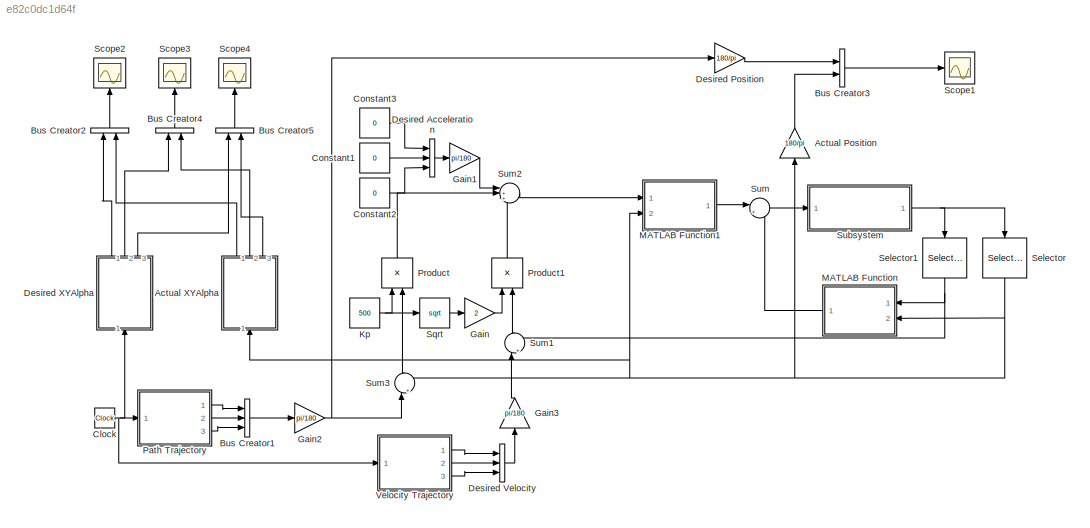
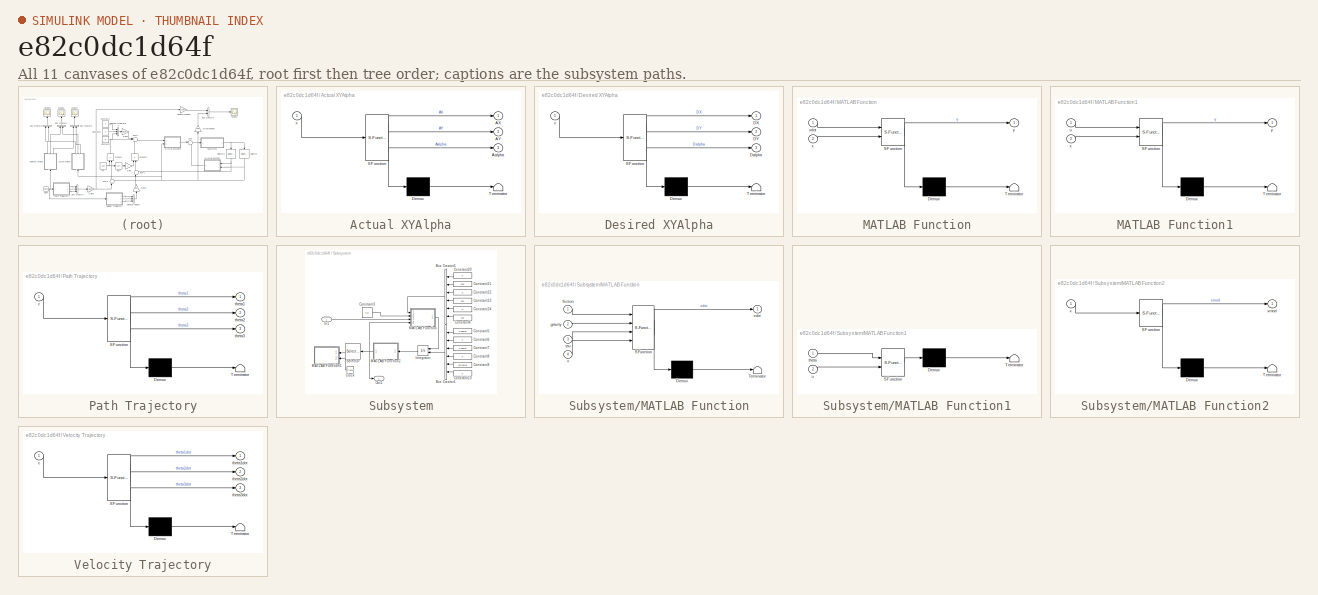
[diagram: thumbnail index - all 11 canvases of the model, root first then tree order]
MODEL slx_e82c0dc1d64f
KIND model
CONFIG AbsTol = auto
CONFIG EnableMultiTasking = off
CONFIG FixedStep = 0.01
CONFIG MaxStep = auto
CONFIG MinStep = auto
CONFIG RelTol = 1e-3
CONFIG SampleTimeConstraint = Unconstrained
CONFIG Solver = ode3
CONFIG SolverName = ode3
CONFIG StartTime = 0.0
CONFIG StopTime = 8.5
BLOCK [Gain] Actual Position
  Gain = 180/pi
  OutDataTypeStr = Inherit: Inherit via internal rule
  ParamDataTypeStr = Inherit: Inherit via internal rule
  SaturateOnIntegerOverflow = off
BLOCK [SubSystem] Actual XYAlpha
  ErrorFcn = Stateflow.Translate.translate
  PermitHierarchicalResolution = ExplicitOnly
  Ports = [1, 3]
  RequestExecContextInheritance = off
  SFBlockType = MATLAB Function
  TreatAsAtomicUnit = on
BLOCK [Demux] Actual XYAlpha/ Demux 
  Outputs = 1
  Ports = [1, 1]
BLOCK [S-Function] Actual XYAlpha/ SFunction 
  EnableBusSupport = on
  FunctionName = sf_sfun
  PortCounts = [1 4]
  Ports = [1, 4]
  SFcnIsStateOwnerBlock = off
  SFunctionDeploymentMode = off
  Tag = Stateflow S-Function task3 9
BLOCK [Terminator] Actual XYAlpha/ Terminator 
BLOCK [Outport] Actual XYAlpha/AX
  IconDisplay = Port number
BLOCK [Outport] Actual XYAlpha/AY
  IconDisplay = Port number
  Port = 2
BLOCK [Outport] Actual XYAlpha/Aalpha
  IconDisplay = Port number
  Port = 3
BLOCK [Inport] Actual XYAlpha/x
  IconDisplay = Port number
BLOCK [BusCreator] Bus Creator1
  DisplayOption = bar
  InheritFromInputs = on
  Inputs = 3
  Ports = [3, 1]
BLOCK [BusCreator] Bus Creator2
  DisplayOption = bar
  InheritFromInputs = on
  Inputs = 2
  Ports = [2, 1]
BLOCK [BusCreator] Bus Creator3
  DisplayOption = bar
  InheritFromInputs = on
  Inputs = 2
  Ports = [2, 1]
BLOCK [BusCreator] Bus Creator4
  DisplayOption = bar
  InheritFromInputs = on
  Inputs = 2
  Ports = [2, 1]
BLOCK [BusCreator] Bus Creator5
  DisplayOption = bar
  InheritFromInputs = on
  Inputs = 2
  Ports = [2, 1]
BLOCK [Clock] Clock
BLOCK [Constant] Constant1
  Value = 0
BLOCK [Constant] Constant2
  Value = 0
BLOCK [Constant] Constant3
  Value = 0
BLOCK [BusCreator] Desired Acceleration
  DisplayOption = bar
  InheritFromInputs = on
  Inputs = 3
  Ports = [3, 1]
BLOCK [Gain] Desired Position
  Gain = 180/pi
  OutDataTypeStr = Inherit: Inherit via internal rule
  ParamDataTypeStr = Inherit: Inherit via internal rule
  SaturateOnIntegerOverflow = off
BLOCK [BusCreator] Desired Velocity
  DisplayOption = bar
  InheritFromInputs = on
  Inputs = 3
  Ports = [3, 1]
BLOCK [SubSystem] Desired XYAlpha
  ErrorFcn = Stateflow.Translate.translate
  PermitHierarchicalResolution = ExplicitOnly
  Ports = [1, 3]
  RequestExecContextInheritance = off
  SFBlockType = MATLAB Function
  TreatAsAtomicUnit = on
BLOCK [Demux] Desired XYAlpha/ Demux 
  Outputs = 1
  Ports = [1, 1]
BLOCK [S-Function] Desired XYAlpha/ SFunction 
  EnableBusSupport = on
  FunctionName = sf_sfun
  PortCounts = [1 4]
  Ports = [1, 4]
  SFcnIsStateOwnerBlock = off
  SFunctionDeploymentMode = off
  Tag = Stateflow S-Function task3 8
BLOCK [Terminator] Desired XYAlpha/ Terminator 
BLOCK [Outport] Desired XYAlpha/DX
  IconDisplay = Port number
BLOCK [Outport] Desired XYAlpha/DY
  IconDisplay = Port number
  Port = 2
BLOCK [Outport] Desired XYAlpha/Dalpha
  IconDisplay = Port number
  Port = 3
BLOCK [Inport] Desired XYAlpha/c
  IconDisplay = Port number
BLOCK [Gain] Gain
  Gain = 2
  OutDataTypeStr = Inherit: Inherit via internal rule
  ParamDataTypeStr = Inherit: Inherit via internal rule
  SaturateOnIntegerOverflow = off
BLOCK [Gain] Gain1
  Gain = pi/180
  OutDataTypeStr = Inherit: Inherit via internal rule
  ParamDataTypeStr = Inherit: Inherit via internal rule
  SaturateOnIntegerOverflow = off
BLOCK [Gain] Gain2
  Gain = pi/180
  OutDataTypeStr = Inherit: Inherit via internal rule
  ParamDataTypeStr = Inherit: Inherit via internal rule
  SaturateOnIntegerOverflow = off
BLOCK [Gain] Gain3
  Gain = pi/180
  OutDataTypeStr = Inherit: Inherit via internal rule
  ParamDataTypeStr = Inherit: Inherit via internal rule
  SaturateOnIntegerOverflow = off
BLOCK [Constant] Kp
  Value = 500
BLOCK [SubSystem] MATLAB Function
  ErrorFcn = Stateflow.Translate.translate
  PermitHierarchicalResolution = ExplicitOnly
  Ports = [2, 1]
  RequestExecContextInheritance = off
  SFBlockType = MATLAB Function
  TreatAsAtomicUnit = on
BLOCK [Demux] MATLAB Function/ Demux 
  Outputs = 1
  Ports = [1, 1]
BLOCK [S-Function] MATLAB Function/ SFunction 
  EnableBusSupport = on
  FunctionName = sf_sfun
  PortCounts = [2 2]
  Ports = [2, 2]
  SFcnIsStateOwnerBlock = off
  SFunctionDeploymentMode = off
  Tag = Stateflow S-Function task3 4
BLOCK [Terminator] MATLAB Function/ Terminator 
BLOCK [Inport] MATLAB Function/x
  IconDisplay = Port number
  Port = 2
BLOCK [Inport] MATLAB Function/xdot
  IconDisplay = Port number
BLOCK [Outport] MATLAB Function/y
  IconDisplay = Port number
BLOCK [SubSystem] MATLAB Function1
  ErrorFcn = Stateflow.Translate.translate
  PermitHierarchicalResolution = ExplicitOnly
  Ports = [2, 1]
  RequestExecContextInheritance = off
  SFBlockType = MATLAB Function
  TreatAsAtomicUnit = on
BLOCK [Demux] MATLAB Function1/ Demux 
  Outputs = 1
  Ports = [1, 1]
BLOCK [S-Function] MATLAB Function1/ SFunction 
  EnableBusSupport = on
  FunctionName = sf_sfun
  PortCounts = [2 2]
  Ports = [2, 2]
  SFcnIsStateOwnerBlock = off
  SFunctionDeploymentMode = off
  Tag = Stateflow S-Function task3 5
BLOCK [Terminator] MATLAB Function1/ Terminator 
BLOCK [Inport] MATLAB Function1/u
  IconDisplay = Port number
BLOCK [Inport] MATLAB Function1/x
  IconDisplay = Port number
  Port = 2
BLOCK [Outport] MATLAB Function1/y
  IconDisplay = Port number
BLOCK [SubSystem] Path Trajectory
  ErrorFcn = Stateflow.Translate.translate
  PermitHierarchicalResolution = ExplicitOnly
  Ports = [1, 3]
  RequestExecContextInheritance = off
  SFBlockType = MATLAB Function
  TreatAsAtomicUnit = on
BLOCK [Demux] Path Trajectory/ Demux 
  Outputs = 1
  Ports = [1, 1]
BLOCK [S-Function] Path Trajectory/ SFunction 
  EnableBusSupport = on
  FunctionName = sf_sfun
  PortCounts = [1 4]
  Ports = [1, 4]
  SFcnIsStateOwnerBlock = off
  SFunctionDeploymentMode = off
  Tag = Stateflow S-Function task3 6
BLOCK [Terminator] Path Trajectory/ Terminator 
BLOCK [Inport] Path Trajectory/c
  IconDisplay = Port number
BLOCK [Outport] Path Trajectory/theta1
  IconDisplay = Port number
BLOCK [Outport] Path Trajectory/theta2
  IconDisplay = Port number
  Port = 2
BLOCK [Outport] Path Trajectory/theta3
  IconDisplay = Port number
  Port = 3
BLOCK [Product] Product
  InputSameDT = off
  OutDataTypeStr = Inherit: Inherit via internal rule
  Ports = [2, 1]
  RndMeth = Floor
  SaturateOnIntegerOverflow = off
BLOCK [Product] Product1
  InputSameDT = off
  OutDataTypeStr = Inherit: Inherit via internal rule
  Ports = [2, 1]
  RndMeth = Floor
  SaturateOnIntegerOverflow = off
BLOCK [Scope] Scope1
  Floating = off
  NumInputPorts = 1
  Ports = [1]
  ScopeSpecificationString = Simulink.scopes.TimeScopeBlockCfg('CurrentConfiguration', extmgr.ConfigurationSet(extmgr.Configuration('Core','General UI',true),extmgr.Configuration('Core','Source UI',true),extmgr.Configuration('Sources','WiredSimulink',true,'DataLoggingVariableName','ScopeData1'),extmgr.Configuration('Visuals','Time Domain',true,'SerializedDisplays',{struct('MinYLimReal','-125.34211','MaxYLimReal','228.07901','...<+1537ch>
BLOCK [Scope] Scope2
  Floating = off
  NumInputPorts = 1
  Ports = [1]
  ScopeSpecificationString = Simulink.scopes.TimeScopeBlockCfg('CurrentConfiguration', extmgr.ConfigurationSet(extmgr.Configuration('Core','General UI',true),extmgr.Configuration('Core','Source UI',true),extmgr.Configuration('Sources','WiredSimulink',true,'DataLoggingVariableName','ScopeData1'),extmgr.Configuration('Visuals','Time Domain',true,'SerializedDisplays',{struct('MinYLimReal','-10.60668','MaxYLimReal','8.9563','YLab...<+1589ch>
BLOCK [Scope] Scope3
  Floating = off
  NumInputPorts = 1
  Ports = [1]
  ScopeSpecificationString = Simulink.scopes.TimeScopeBlockCfg('CurrentConfiguration', extmgr.ConfigurationSet(extmgr.Configuration('Core','General UI',true),extmgr.Configuration('Core','Source UI',true),extmgr.Configuration('Sources','WiredSimulink',true,'DataLoggingVariableName','ScopeData2'),extmgr.Configuration('Visuals','Time Domain',true,'SerializedDisplays',{struct('MinYLimReal','-1.36875','MaxYLimReal','7.84772','YLab...<+1587ch>
BLOCK [Scope] Scope4
  Floating = off
  NumInputPorts = 1
  Ports = [1]
  ScopeSpecificationString = Simulink.scopes.TimeScopeBlockCfg('CurrentConfiguration', extmgr.ConfigurationSet(extmgr.Configuration('Core','General UI',true),extmgr.Configuration('Core','Source UI',true),extmgr.Configuration('Sources','WiredSimulink',true,'DataLoggingVariableName','ScopeData3'),extmgr.Configuration('Visuals','Time Domain',true,'SerializedDisplays',{struct('MinYLimReal','-3.9262','MaxYLimReal','3.92655','YLabe...<+1618ch>
BLOCK [Selector] Selector
  IndexOptions = Index vector (dialog)
  Indices = [1 3 5]
  InputPortWidth = 6
  OutputSizes = 1
  Ports = [1, 1]
BLOCK [Selector] Selector1
  IndexOptions = Index vector (dialog)
  Indices = [2 4 6]
  InputPortWidth = 6
  OutputSizes = 1
  Ports = [1, 1]
BLOCK [Sqrt] Sqrt
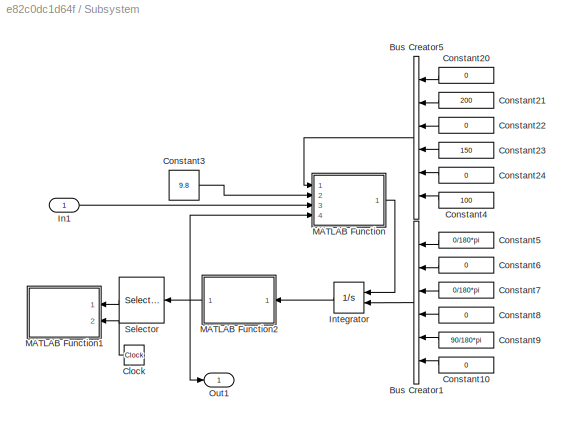
BLOCK [SubSystem] Subsystem
  Ports = [1, 1]
  RequestExecContextInheritance = off
BLOCK [BusCreator] Subsystem/Bus Creator1
  DisplayOption = bar
  InheritFromInputs = on
  Inputs = 6
  Ports = [6, 1]
BLOCK [BusCreator] Subsystem/Bus Creator5
  DisplayOption = bar
  InheritFromInputs = on
  Inputs = 6
  Ports = [6, 1]
BLOCK [Clock] Subsystem/Clock
BLOCK [Constant] Subsystem/Constant10
  Value = 0
BLOCK [Constant] Subsystem/Constant20
  Value = 0
BLOCK [Constant] Subsystem/Constant21
  Value = 200
BLOCK [Constant] Subsystem/Constant22
  Value = 0
BLOCK [Constant] Subsystem/Constant23
  Value = 150
BLOCK [Constant] Subsystem/Constant24
  Value = 0
BLOCK [Constant] Subsystem/Constant3
  Value = 9.8
BLOCK [Constant] Subsystem/Constant4
  Value = 100
BLOCK [Constant] Subsystem/Constant5
  Value = 0/180*pi
BLOCK [Constant] Subsystem/Constant6
  Value = 0
BLOCK [Constant] Subsystem/Constant7
  Value = 0/180*pi
BLOCK [Constant] Subsystem/Constant8
  Value = 0
BLOCK [Constant] Subsystem/Constant9
  Value = 90/180*pi
BLOCK [Inport] Subsystem/In1
  IconDisplay = Port number
BLOCK [Integrator] Subsystem/Integrator
  InitialCondition = [1/18*pi;0;1/9*pi;0;1/6*pi;0]
  InitialConditionSource = external
  Ports = [2, 1]
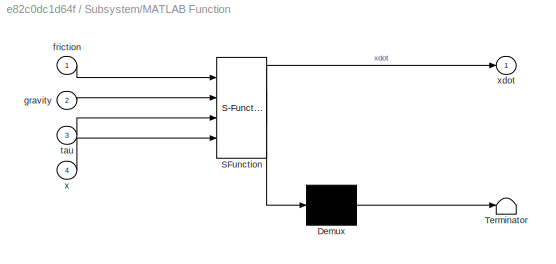
BLOCK [SubSystem] Subsystem/MATLAB Function
  ErrorFcn = Stateflow.Translate.translate
  PermitHierarchicalResolution = ExplicitOnly
  Ports = [4, 1]
  RequestExecContextInheritance = off
  SFBlockType = MATLAB Function
  TreatAsAtomicUnit = on
BLOCK [Demux] Subsystem/MATLAB Function/ Demux 
  Outputs = 1
  Ports = [1, 1]
BLOCK [S-Function] Subsystem/MATLAB Function/ SFunction 
  EnableBusSupport = on
  FunctionName = sf_sfun
  PortCounts = [4 2]
  Ports = [4, 2]
  SFcnIsStateOwnerBlock = off
  SFunctionDeploymentMode = off
  Tag = Stateflow S-Function task3 2
BLOCK [Terminator] Subsystem/MATLAB Function/ Terminator 
BLOCK [Inport] Subsystem/MATLAB Function/friction
  IconDisplay = Port number
BLOCK [Inport] Subsystem/MATLAB Function/gravity
  IconDisplay = Port number
  Port = 2
BLOCK [Inport] Subsystem/MATLAB Function/tau
  IconDisplay = Port number
  Port = 3
BLOCK [Inport] Subsystem/MATLAB Function/x
  IconDisplay = Port number
  Port = 4
BLOCK [Outport] Subsystem/MATLAB Function/xdot
  IconDisplay = Port number
BLOCK [SubSystem] Subsystem/MATLAB Function1
  ErrorFcn = Stateflow.Translate.translate
  PermitHierarchicalResolution = ExplicitOnly
  Ports = [2]
  RequestExecContextInheritance = off
  SFBlockType = MATLAB Function
  TreatAsAtomicUnit = on
BLOCK [Demux] Subsystem/MATLAB Function1/ Demux 
  Outputs = 1
  Ports = [1, 1]
BLOCK [S-Function] Subsystem/MATLAB Function1/ SFunction 
  EnableBusSupport = on
  FunctionName = sf_sfun
  PortCounts = [2 1]
  Ports = [2, 1]
  SFcnIsStateOwnerBlock = off
  SFunctionDeploymentMode = off
  Tag = Stateflow S-Function task3 1
BLOCK [Terminator] Subsystem/MATLAB Function1/ Terminator 
BLOCK [Inport] Subsystem/MATLAB Function1/theta
  IconDisplay = Port number
BLOCK [Inport] Subsystem/MATLAB Function1/u
  IconDisplay = Port number
  Port = 2
BLOCK [SubSystem] Subsystem/MATLAB Function2
  ErrorFcn = Stateflow.Translate.translate
  PermitHierarchicalResolution = ExplicitOnly
  Ports = [1, 1]
  RequestExecContextInheritance = off
  SFBlockType = MATLAB Function
  TreatAsAtomicUnit = on
BLOCK [Demux] Subsystem/MATLAB Function2/ Demux 
  Outputs = 1
  Ports = [1, 1]
BLOCK [S-Function] Subsystem/MATLAB Function2/ SFunction 
  EnableBusSupport = on
  FunctionName = sf_sfun
  PortCounts = [1 2]
  Ports = [1, 2]
  SFcnIsStateOwnerBlock = off
  SFunctionDeploymentMode = off
  Tag = Stateflow S-Function task3 3
BLOCK [Terminator] Subsystem/MATLAB Function2/ Terminator 
BLOCK [Inport] Subsystem/MATLAB Function2/x
  IconDisplay = Port number
BLOCK [Outport] Subsystem/MATLAB Function2/xmod
  IconDisplay = Port number
BLOCK [Outport] Subsystem/Out1
  IconDisplay = Port number
BLOCK [Selector] Subsystem/Selector
  IndexOptions = Index vector (dialog)
  Indices = [1 3 5]
  InputPortWidth = 6
  OutputSizes = 1
  Ports = [1, 1]
BLOCK [Sum] Sum
  IconShape = round
  InputSameDT = off
  Inputs = |++
  OutDataTypeStr = Inherit: Inherit via internal rule
  Ports = [2, 1]
  SaturateOnIntegerOverflow = off
BLOCK [Sum] Sum1
  IconShape = round
  InputSameDT = off
  Inputs = |+-
  OutDataTypeStr = Inherit: Inherit via internal rule
  Ports = [2, 1]
  SaturateOnIntegerOverflow = off
BLOCK [Sum] Sum2
  IconShape = round
  InputSameDT = off
  Inputs = |+++
  OutDataTypeStr = Inherit: Inherit via internal rule
  Ports = [3, 1]
  SaturateOnIntegerOverflow = off
BLOCK [Sum] Sum3
  IconShape = round
  InputSameDT = off
  Inputs = |+-
  OutDataTypeStr = Inherit: Inherit via internal rule
  Ports = [2, 1]
  SaturateOnIntegerOverflow = off
BLOCK [SubSystem] Velocity Trajectory
  ErrorFcn = Stateflow.Translate.translate
  PermitHierarchicalResolution = ExplicitOnly
  Ports = [1, 3]
  RequestExecContextInheritance = off
  SFBlockType = MATLAB Function
  TreatAsAtomicUnit = on
BLOCK [Demux] Velocity Trajectory/ Demux 
  Outputs = 1
  Ports = [1, 1]
BLOCK [S-Function] Velocity Trajectory/ SFunction 
  EnableBusSupport = on
  FunctionName = sf_sfun
  PortCounts = [1 4]
  Ports = [1, 4]
  SFcnIsStateOwnerBlock = off
  SFunctionDeploymentMode = off
  Tag = Stateflow S-Function task3 7
BLOCK [Terminator] Velocity Trajectory/ Terminator 
BLOCK [Inport] Velocity Trajectory/c
  IconDisplay = Port number
BLOCK [Outport] Velocity Trajectory/theta1dot
  IconDisplay = Port number
BLOCK [Outport] Velocity Trajectory/theta2dot
  IconDisplay = Port number
  Port = 2
BLOCK [Outport] Velocity Trajectory/theta3dot
  IconDisplay = Port number
  Port = 3
LINE Actual Position:1 -> Bus Creator3:2
LINE Actual XYAlpha:1 -> Bus Creator2:2
LINE Actual XYAlpha:2 -> Bus Creator4:2
LINE Actual XYAlpha:3 -> Bus Creator5:2
LINE Bus Creator1:1 -> Gain2:1
LINE Bus Creator2:1 -> Scope2:1
LINE Bus Creator3:1 -> Scope1:1
LINE Bus Creator4:1 -> Scope3:1
LINE Bus Creator5:1 -> Scope4:1
NET Clock:1 -> Desired XYAlpha:1, Path Trajectory:1, Velocity Trajectory:1
LINE Constant1:1 -> Desired Acceleration:2
LINE Constant2:1 -> Desired Acceleration:3
LINE Constant3:1 -> Desired Acceleration:1
LINE Desired Acceleration:1 -> Gain1:1
LINE Desired Position:1 -> Bus Creator3:1
LINE Desired Velocity:1 -> Gain3:1
LINE Desired XYAlpha:1 -> Bus Creator2:1
LINE Desired XYAlpha:2 -> Bus Creator4:1
LINE Desired XYAlpha:3 -> Bus Creator5:1
LINE Gain1:1 -> Sum2:1
NET Gain2:1 -> Desired Position:1, Sum3:1
LINE Gain3:1 -> Sum1:1
LINE Gain:1 -> Product1:1
NET Kp:1 -> Product:1, Sqrt:1
LINE MATLAB Function1:1 -> Sum:1
LINE MATLAB Function:1 -> Sum:2
LINE Path Trajectory:1 -> Bus Creator1:1
LINE Path Trajectory:2 -> Bus Creator1:2
LINE Path Trajectory:3 -> Bus Creator1:3
LINE Product1:1 -> Sum2:3
LINE Product:1 -> Sum2:2
NET Selector1:1 -> MATLAB Function:1, Sum1:2
NET Selector:1 -> Actual Position:1, Actual XYAlpha:1, MATLAB Function1:2, MATLAB Function:2, Sum3:2
LINE Sqrt:1 -> Gain:1
LINE Subsystem/Bus Creator1:1 -> Subsystem/Integrator:2
LINE Subsystem/Bus Creator5:1 -> Subsystem/MATLAB Function:1
LINE Subsystem/Clock:1 -> Subsystem/MATLAB Function1:2
LINE Subsystem/Constant10:1 -> Subsystem/Bus Creator1:6
LINE Subsystem/Constant20:1 -> Subsystem/Bus Creator5:1
LINE Subsystem/Constant21:1 -> Subsystem/Bus Creator5:2
LINE Subsystem/Constant22:1 -> Subsystem/Bus Creator5:3
LINE Subsystem/Constant23:1 -> Subsystem/Bus Creator5:4
LINE Subsystem/Constant24:1 -> Subsystem/Bus Creator5:5
LINE Subsystem/Constant3:1 -> Subsystem/MATLAB Function:2
LINE Subsystem/Constant4:1 -> Subsystem/Bus Creator5:6
LINE Subsystem/Constant5:1 -> Subsystem/Bus Creator1:1
LINE Subsystem/Constant6:1 -> Subsystem/Bus Creator1:2
LINE Subsystem/Constant7:1 -> Subsystem/Bus Creator1:3
LINE Subsystem/Constant8:1 -> Subsystem/Bus Creator1:4
LINE Subsystem/Constant9:1 -> Subsystem/Bus Creator1:5
LINE Subsystem/In1:1 -> Subsystem/MATLAB Function:3
LINE Subsystem/Integrator:1 -> Subsystem/MATLAB Function2:1
NET Subsystem/MATLAB Function2:1 -> Subsystem/MATLAB Function:4, Subsystem/Out1:1, Subsystem/Selector:1
LINE Subsystem/MATLAB Function:1 -> Subsystem/Integrator:1
LINE Subsystem/Selector:1 -> Subsystem/MATLAB Function1:1
NET Subsystem:1 -> Selector1:1, Selector:1
LINE Sum1:1 -> Product1:2
LINE Sum2:1 -> MATLAB Function1:1
LINE Sum3:1 -> Product:2
LINE Sum:1 -> Subsystem:1
LINE Velocity Trajectory:1 -> Desired Velocity:1
LINE Velocity Trajectory:2 -> Desired Velocity:2
LINE Velocity Trajectory:3 -> Desired Velocity:3
note: NET lines group one-source signal fan-out (src -> all destinations, sorted); 1:1 wires keep LINE
CHART Subsystem/MATLAB Function1 states=1 transitions=1
  STATE_LABEL 'eML_blk_kernel()'
  STATE_LABEL "SCRIPT:\nfunction animate(theta,u)\n%#codegen\ncoder.extrinsic('saveas');\ncoder.extrinsic('num2str');\nu = int16( u / 0.01) + 1;\ntheta1 = theta(1);\ntheta2 = theta(2);\ntheta3 = theta(3);\n%hold off\nT_0 = eye(4);\nhold off\nl1 = 4;\nl2 = 3;\nl3 = 2;\npoint1=[[0,0,0];[4,0,0]];\npoint2 = [[0,0,0];[3,0,0]];\npoint3 = [[0,0,0];[2,0,0]];\n\nT_01 = [cos(theta1) -sin(theta1) 0 0; sin(theta1) cos(theta1) 0 0; 0 0 1 0; 0 ...<+718ch>"
CHART Subsystem/MATLAB Function states=1 transitions=1
  STATE_LABEL 'eML_blk_kernel()'
  STATE_LABEL 'SCRIPT:\nfunction xdot = fcn(friction, gravity, tau, x)\n%#codegen\ntheta1 = x(1);\ntheta_1 = x(2);\ntheta2 = x(3);\ntheta_2 = x(4);\ntheta3 = x(5);\ntheta_3 = x(6);\n\nf_1 = friction(2);\nf_2 = friction(4);\nf_3 = friction(6);\n\ng = gravity;\ntau1 = tau(1);\ntau2 = tau(2);\ntau3 = tau(3);\n\nm1 = 20;\nm2 = 15;\nm3 = 10;\nl1 = 4;\nl2 = 3;\nl3 = 2;\nIzz1 = 0.5;\nIzz2 = 0.2;\nIzz3 = 0.1;\n\nM11 = m3 * (l1^2 + l2^2 + l3^2/4 + 2...<+1828ch>'
CHART Subsystem/MATLAB Function2 states=1 transitions=1
  STATE_LABEL 'eML_blk_kernel()'
  STATE_LABEL 'SCRIPT:\nfunction xmod = fcn(x)\nq1 = x(1);\nq2 = x(3);\nq3 = x(5);\n%q1 = atan2(sin(q1), cos(q1));\nq2 = atan2(sin(q2), cos(q2));\nq3 = atan2(sin(q3), cos(q3));\nxmod = [q1;x(2);q2;x(4);q3;x(6)];\n'
CHART MATLAB Function states=1 transitions=1
  STATE_LABEL 'eML_blk_kernel()'
  STATE_LABEL 'SCRIPT:\nfunction y = CBG(xdot, x)\n\nm1 = 20;\nm2 = 15;\nm3 = 10;\nl1 = 4;\nl2 = 3;\nl3 = 2;\ng = 9.8;\n\ntheta1 = x(1);\ntheta2 = x(2);\ntheta3 = x(3);\n\ntheta_1 = xdot(1);\ntheta_2 = xdot(2);\ntheta_3 = xdot(3);\n\nC12 = m3 * (-l1*l2*sin(theta2) - l1*l3/2*sin(theta2 + theta3)) + m2 * (-l1*l2/2*sin(theta2));\nC21 = -C12;\nC13 = m3 * (-l2*l3/2*sin(theta3) - l1*l3/2*sin(theta2 + theta3));\nC31 = -C13;\nC23 = m3 * (-l2 ...<+822ch>'
CHART MATLAB Function1 states=1 transitions=1
  STATE_LABEL 'eML_blk_kernel()'
  STATE_LABEL 'SCRIPT:\nfunction y = Mass(u, x)\n\ntheta1 = x(1);\ntheta2 = x(2);\ntheta3 = x(3);\n\nm1 = 20;\nm2 = 15;\nm3 = 10;\nl1 = 4;\nl2 = 3;\nl3 = 2;\nIzz1 = 0.5;\nIzz2 = 0.2;\nIzz3 = 0.1;\n\nM11 = m3 * (l1^2 + l2^2 + l3^2/4 + 2*l1*l2*cos(theta2) + l2*l3*cos(theta3) + l1*l3*cos(theta2 + theta3)) + m2 * (l1^2 + l2^2/4 + l1*l2*cos(theta2)) + m1 * l1^2/4 + Izz1 + Izz2 + Izz3;\nM12 = m3 * (l2^2 + l3^2/4 + l1*l2*cos(theta2) + l...<+425ch>'
CHART Path Trajectory states=1 transitions=1
  STATE_LABEL 'eML_blk_kernel()'
  STATE_LABEL "SCRIPT:\nfunction [theta1, theta2, theta3] = fcn(c)\nx = load('trajectory.mat');\nx = x.s;\nq1 = x(1,:);\nq2 = x(2,:);\nq3 = x(3,:);\ni = c/0.01 + 1;\nindex = int16(i);\nif (index > int16(801))\n    index = int16(801);\nend\ntheta1 = q1(index);\ntheta2 = q2(index);\ntheta3 = q3(index);\n\n\n\n"
CHART Velocity Trajectory states=1 transitions=1
  STATE_LABEL 'eML_blk_kernel()'
  STATE_LABEL "SCRIPT:\nfunction [theta1dot, theta2dot, theta3dot] = fcn(c)\nx = load('velocity.mat');\nx = x.b;\nq1 = x(1,:);\nq2 = x(2,:);\nq3 = x(3,:);\ni = c/0.01 + 1;\nindex = int16(i);\nif (index > int16(801))\n    index = int16(1);\nend\ntheta1dot = q1(index);\ntheta2dot = q2(index);\ntheta3dot = q3(index);\n\n\n\n"
CHART Desired
XYAlpha states=1 transitions=1
  STATE_LABEL 'eML_blk_kernel()'
  STATE_LABEL "SCRIPT:\nfunction [DX, DY, Dalpha] = fcn(c)\nx = load('xyalpha.mat');\nx = x.y;\nX_ = x(1,:);\nY_ = x(2,:);\nalpha_ = x(3,:);\ni = c/0.01 + 1;\nindex = int16(i);\nif (index > int16(801))\n    index = int16(801);\nend\nDX = X_(index);\nDY = Y_(index);\nDalpha = alpha_(index);\n\n\n\n\n"
CHART Actual
XYAlpha states=1 transitions=1
  STATE_LABEL 'eML_blk_kernel()'
  STATE_LABEL 'SCRIPT:\nfunction [AX, AY, Aalpha] = fcn(x)\ntheta1 = x(1);\ntheta2 = x(2);\ntheta3 = x(3);\nl1 = 4;\nl2 = 3;\nl3 = 2;\nAX = l3 * cos(theta1 + theta2 + theta3) + l2 * cos(theta2 + theta1) + l1 * cos(theta1);\nAY = l3 * sin(theta1 + theta2 + theta3) + l2 * sin(theta2 + theta1) + l1 * sin(theta1);\nAalpha = atan2(AY, AX);\n\n\n\n\n\n'
